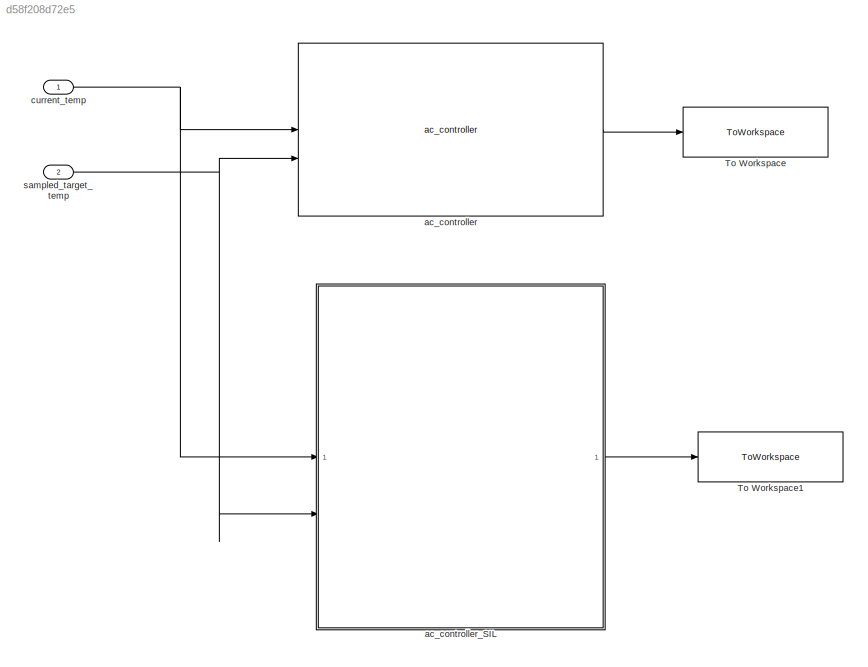
MODEL slx_d58f208d72e5
KIND model
CONFIG AbsTol = auto
CONFIG EnableMultiTasking = off
CONFIG FixedStep = auto
CONFIG MaxStep = auto
CONFIG MinStep = auto
CONFIG RelTol = 1e-3
CONFIG SampleTimeConstraint = Unconstrained
CONFIG SolverName = FixedStepAuto
CONFIG StartTime = 0.0
CONFIG StopTime = 10.0
BLOCK [ToWorkspace] To Workspace
  FixptAsFi = on
  MaxDataPoints = inf
  SampleTime = -1
  SaveFormat = Timeseries
  VariableName = power_cool_heat
BLOCK [ToWorkspace] To Workspace1
  FixptAsFi = on
  MaxDataPoints = inf
  SampleTime = -1
  SaveFormat = Timeseries
  VariableName = power_cool_heat_SIL
BLOCK [Reference] ac_controller  REF=ac_controller/ac_controller  (lib defined in slx_5e19b1382a52)
  SourceBlock = ac_controller/ac_controller
  SourceType = SubSystem
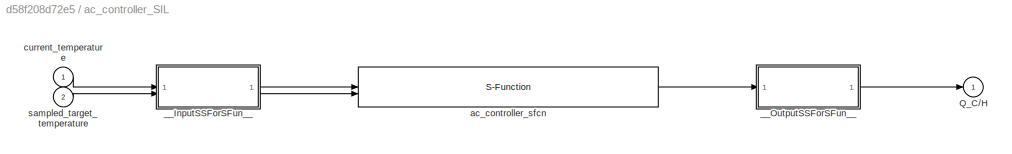
BLOCK [SubSystem] ac_controller_SIL
BLOCK [Outport] ac_controller_SIL/Q_C//H
  LockScale = on
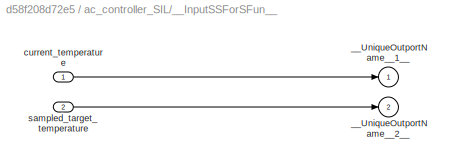
BLOCK [SubSystem] ac_controller_SIL/__InputSSForSFun__
  PermitHierarchicalResolution = ExplicitOnly
BLOCK [Outport] ac_controller_SIL/__InputSSForSFun__/__UniqueOutportName__1__
BLOCK [Outport] ac_controller_SIL/__InputSSForSFun__/__UniqueOutportName__2__
  Port = 2
BLOCK [Inport] ac_controller_SIL/__InputSSForSFun__/current_temperature
BLOCK [Inport] ac_controller_SIL/__InputSSForSFun__/sampled_target_temperature
  Port = 2
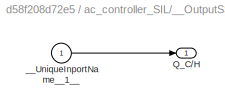
BLOCK [SubSystem] ac_controller_SIL/__OutputSSForSFun__
  PermitHierarchicalResolution = ExplicitOnly
BLOCK [Outport] ac_controller_SIL/__OutputSSForSFun__/Q_C//H
  LockScale = on
BLOCK [Inport] ac_controller_SIL/__OutputSSForSFun__/__UniqueInportName__1__
BLOCK [S-Function] ac_controller_SIL/ac_controller_sfcn
  CopyFcn = if ~strcmp(get_param(gcb,'Linkstatus'),'none') && ...\n~strcmp(get_param(gcb,'Linkstatus'),'implicit')      \n  set_param(gcb,'LinkStatus','none');                \nend
  EnableBusSupport = off
  FunctionName = ac_controller0_sf
  SFcnIsStateOwnerBlock = on
  SFcnStateName = DWORK0
  SFunctionDeploymentMode = off
BLOCK [Inport] ac_controller_SIL/current_temperature
BLOCK [Inport] ac_controller_SIL/sampled_target_temperature
  Port = 2
BLOCK [Inport] current_temp
  Interpolate = off
  OutDataTypeStr = int16
  SampleTime = 0.1
BLOCK [Inport] sampled_target_temp
  Interpolate = off
  OutDataTypeStr = int16
  Port = 2
  SampleTime = 0.1
LINE ac_controller:1 -> To Workspace:1
LINE ac_controller_SIL/__InputSSForSFun__/current_temperature:1 -> ac_controller_SIL/__InputSSForSFun__/__UniqueOutportName__1__:1
LINE ac_controller_SIL/__InputSSForSFun__/sampled_target_temperature:1 -> ac_controller_SIL/__InputSSForSFun__/__UniqueOutportName__2__:1
LINE ac_controller_SIL/__InputSSForSFun__:1 -> ac_controller_SIL/ac_controller_sfcn:1
LINE ac_controller_SIL/__InputSSForSFun__:2 -> ac_controller_SIL/ac_controller_sfcn:2
LINE ac_controller_SIL/__OutputSSForSFun__/__UniqueInportName__1__:1 -> ac_controller_SIL/__OutputSSForSFun__/Q_C//H:1
LINE ac_controller_SIL/__OutputSSForSFun__:1 -> ac_controller_SIL/Q_C//H:1
LINE ac_controller_SIL/ac_controller_sfcn:1 -> ac_controller_SIL/__OutputSSForSFun__:1
LINE ac_controller_SIL/current_temperature:1 -> ac_controller_SIL/__InputSSForSFun__:1
LINE ac_controller_SIL/sampled_target_temperature:1 -> ac_controller_SIL/__InputSSForSFun__:2
LINE ac_controller_SIL:1 -> To Workspace1:1
NET current_temp:1 -> ac_controller:1, ac_controller_SIL:1
NET sampled_target_temp:1 -> ac_controller:2, ac_controller_SIL:2
note: NET lines group one-source signal fan-out (src -> all destinations, sorted); 1:1 wires keep LINE
